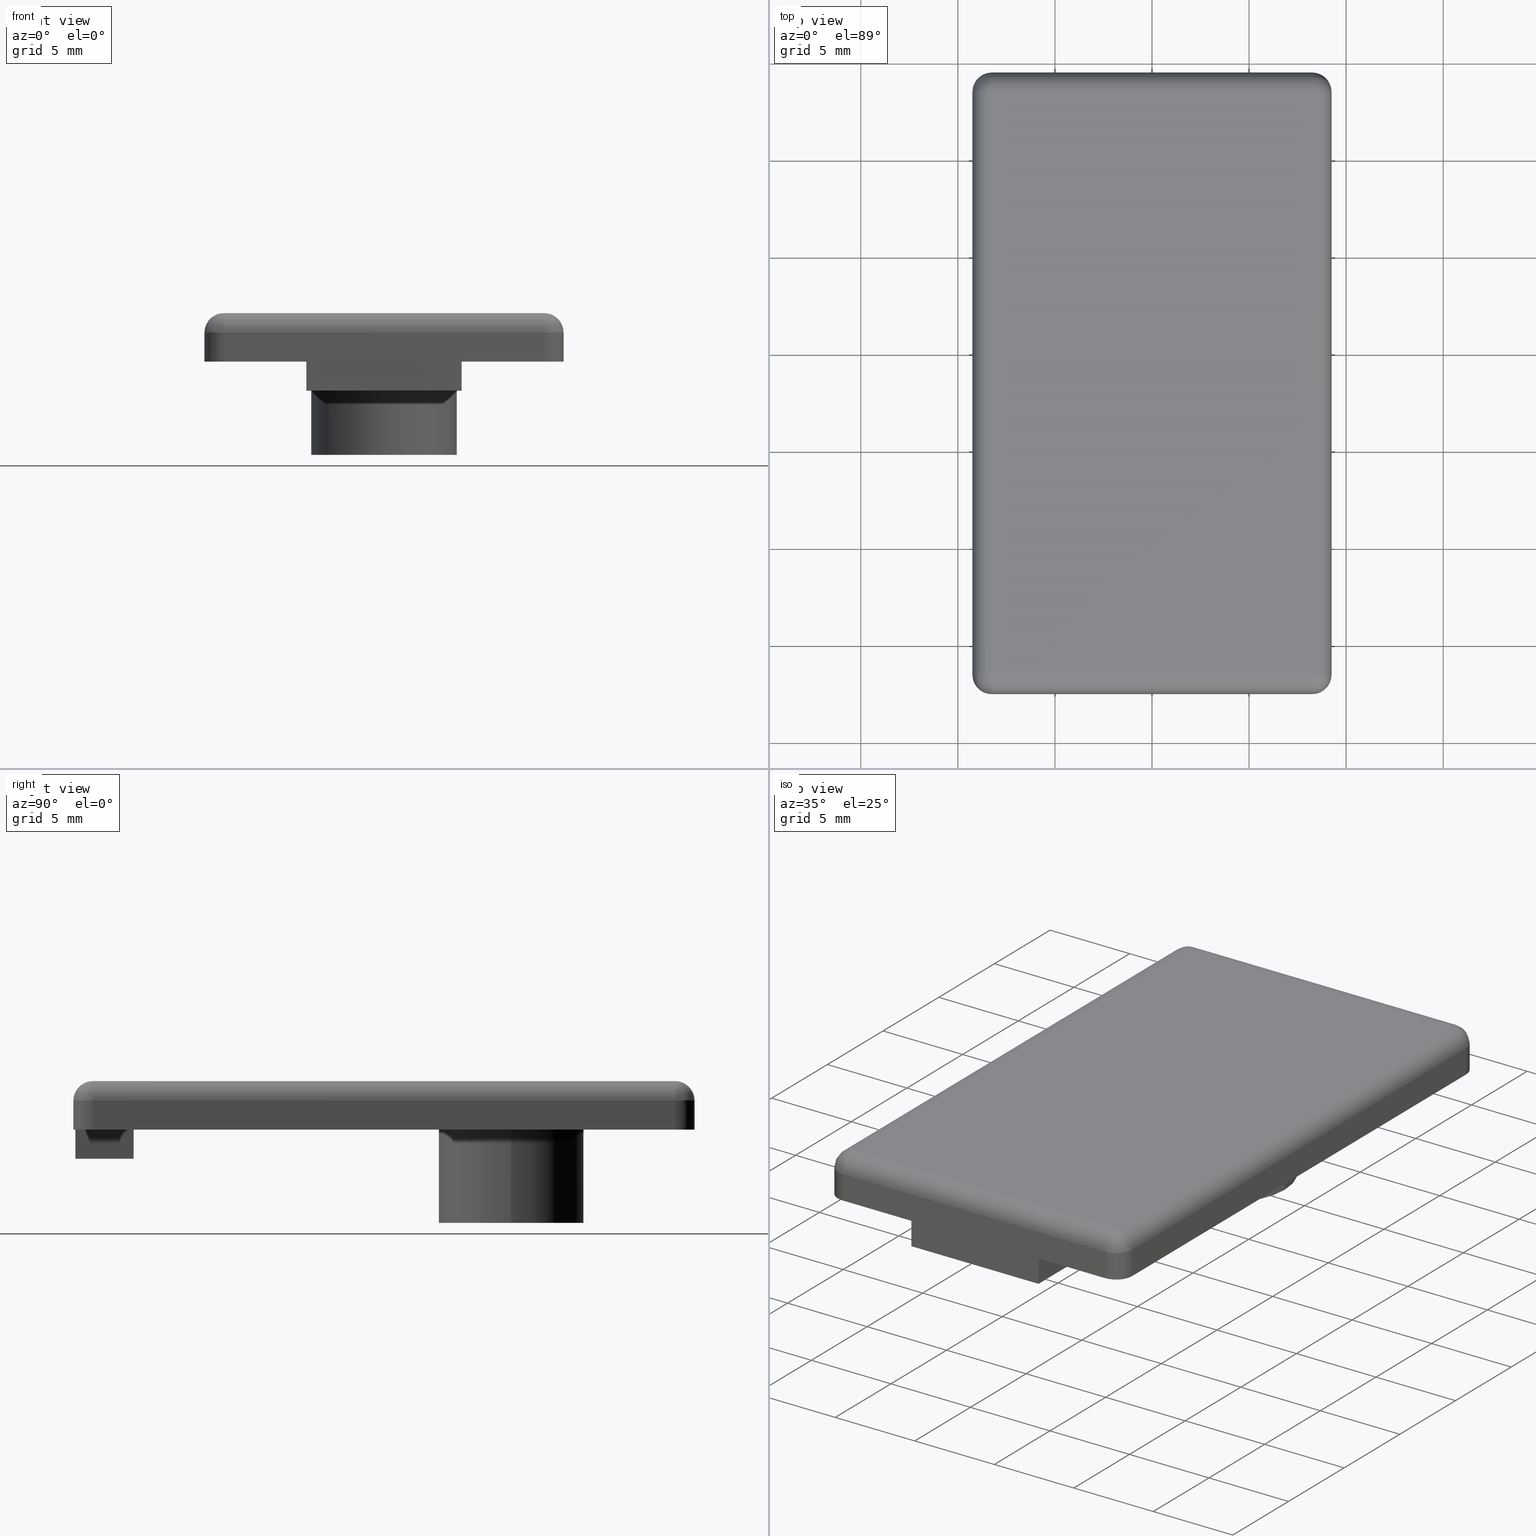
[diagram: canonical four-view strip — front | top / right | iso, engineering-drawing reading convention]
A machine part, canonical four-view strip (front | top / right | iso — engineering-drawing reading convention). The complete STEP part file that produces these views, byte-faithful:
ISO-10303-21;
HEADER;
/****************************************************************
 * Generated by software with PDE/Lib inside                    *
 * PDElib Version v4.4, created Mon 02/23/2004                  *
 * International Technegroup Inc. (www.iti-oh.com)              *
 ****************************************************************/
FILE_DESCRIPTION(('STEP AP203'),'2;1');
FILE_NAME('18.050.00.stp','2011-03-21T16:00:55',(''),(''),'2009.3.110','THINKDESIGN','');
FILE_SCHEMA(('CONFIG_CONTROL_DESIGN'));
ENDSEC;
DATA;
#2=CARTESIAN_POINT('',(-11.100004732942580,-25.750004732806246,0.0));
#3=DIRECTION('',(0.0,0.0,1.0));
#4=DIRECTION('',(1.0,0.0,0.0));
#5=AXIS2_PLACEMENT_3D('',#2,#3,#4);
#6=PLANE('',#5);
#7=CARTESIAN_POINT('',(-8.249999999966803,-22.549999999909687,0.0));
#8=VERTEX_POINT('',#7);
#9=CARTESIAN_POINT('',(8.249999999967258,-22.549999999909687,0.0));
#10=VERTEX_POINT('',#9);
#11=CARTESIAN_POINT('',(-8.249999999966803,-22.549999999909687,0.0));
#12=DIRECTION('',(1.0,0.0,0.0));
#13=VECTOR('',#12,16.499999999934062);
#14=LINE('',#11,#13);
#15=EDGE_CURVE('',#8,#10,#14,.T.);
#16=ORIENTED_EDGE('',*,*,#15,.F.);
#17=CARTESIAN_POINT('',(-9.249999999962711,-21.549999999913780,0.0));
#18=VERTEX_POINT('',#17);
#19=CARTESIAN_POINT('',(-8.249999999966803,-21.549999999913780,0.0));
#20=DIRECTION('',(0.0,0.0,1.0));
#21=DIRECTION('',(1.0,0.0,0.0));
#22=AXIS2_PLACEMENT_3D('',#19,#20,#21);
#23=CIRCLE('',#22,0.999999999995907);
#24=EDGE_CURVE('',#18,#8,#23,.T.);
#25=ORIENTED_EDGE('',*,*,#24,.F.);
#26=CARTESIAN_POINT('',(-9.249999999962711,8.449999999966167,0.0));
#27=VERTEX_POINT('',#26);
#28=CARTESIAN_POINT('',(-9.249999999962711,8.449999999966167,0.0));
#29=DIRECTION('',(0.0,-1.0,0.0));
#30=VECTOR('',#29,29.999999999879947);
#31=LINE('',#28,#30);
#32=EDGE_CURVE('',#27,#18,#31,.T.);
#33=ORIENTED_EDGE('',*,*,#32,.F.);
#34=CARTESIAN_POINT('',(-8.249999999966803,9.449999999962074,0.0));
#35=VERTEX_POINT('',#34);
#36=CARTESIAN_POINT('',(-8.249999999966803,8.449999999966167,0.0));
#37=DIRECTION('',(0.0,0.0,1.0));
#38=DIRECTION('',(1.0,0.0,0.0));
#39=AXIS2_PLACEMENT_3D('',#36,#37,#38);
#40=CIRCLE('',#39,0.999999999995907);
#41=EDGE_CURVE('',#35,#27,#40,.T.);
#42=ORIENTED_EDGE('',*,*,#41,.F.);
#43=CARTESIAN_POINT('',(8.249999999967258,9.449999999962074,0.0));
#44=VERTEX_POINT('',#43);
#45=CARTESIAN_POINT('',(8.249999999967258,9.449999999962074,0.0));
#46=DIRECTION('',(-1.0,0.0,0.0));
#47=VECTOR('',#46,16.499999999934062);
#48=LINE('',#45,#47);
#49=EDGE_CURVE('',#44,#35,#48,.T.);
#50=ORIENTED_EDGE('',*,*,#49,.F.);
#51=CARTESIAN_POINT('',(9.249999999963166,8.449999999966167,0.0));
#52=VERTEX_POINT('',#51);
#53=CARTESIAN_POINT('',(8.249999999967258,8.449999999966167,0.0));
#54=DIRECTION('',(0.0,0.0,1.0));
#55=DIRECTION('',(1.0,0.0,0.0));
#56=AXIS2_PLACEMENT_3D('',#53,#54,#55);
#57=CIRCLE('',#56,0.999999999995907);
#58=EDGE_CURVE('',#52,#44,#57,.T.);
#59=ORIENTED_EDGE('',*,*,#58,.F.);
#60=CARTESIAN_POINT('',(9.249999999963166,-21.549999999913780,0.0));
#61=VERTEX_POINT('',#60);
#62=CARTESIAN_POINT('',(9.249999999963166,-21.549999999913780,0.0));
#63=DIRECTION('',(0.0,1.0,0.0));
#64=VECTOR('',#63,29.999999999879947);
#65=LINE('',#62,#64);
#66=EDGE_CURVE('',#61,#52,#65,.T.);
#67=ORIENTED_EDGE('',*,*,#66,.F.);
#68=CARTESIAN_POINT('',(8.249999999967258,-21.549999999913780,0.0));
#69=DIRECTION('',(0.0,0.0,1.0));
#70=DIRECTION('',(1.0,0.0,0.0));
#71=AXIS2_PLACEMENT_3D('',#68,#69,#70);
#72=CIRCLE('',#71,0.999999999995907);
#73=EDGE_CURVE('',#10,#61,#72,.T.);
#74=ORIENTED_EDGE('',*,*,#73,.F.);
#75=EDGE_LOOP('',(#16,#25,#33,#42,#50,#59,#67,#74));
#76=FACE_OUTER_BOUND('',#75,.T.);
#77=CARTESIAN_POINT('',(-3.749999999984993,0.0,0.0));
#78=VERTEX_POINT('',#77);
#79=CARTESIAN_POINT('',(3.749999999984993,0.0,0.0));
#80=VERTEX_POINT('',#79);
#81=CARTESIAN_POINT('',(0.0,0.0,0.0));
#82=DIRECTION('',(0.0,0.0,-1.0));
#83=DIRECTION('',(1.0,0.0,0.0));
#84=AXIS2_PLACEMENT_3D('',#81,#82,#83);
#85=CIRCLE('',#84,3.749999999984993);
#86=EDGE_CURVE('',#78,#80,#85,.T.);
#87=ORIENTED_EDGE('',*,*,#86,.F.);
#88=CARTESIAN_POINT('',(0.0,0.0,0.0));
#89=DIRECTION('',(0.0,0.0,-1.0));
#90=DIRECTION('',(1.0,0.0,0.0));
#91=AXIS2_PLACEMENT_3D('',#88,#89,#90);
#92=CIRCLE('',#91,3.749999999984993);
#93=EDGE_CURVE('',#80,#78,#92,.T.);
#94=ORIENTED_EDGE('',*,*,#93,.F.);
#95=EDGE_LOOP('',(#87,#94));
#96=FACE_BOUND('',#95,.T.);
#97=CARTESIAN_POINT('',(-3.999999999984084,-19.449999999922056,0.0));
#98=VERTEX_POINT('',#97);
#99=CARTESIAN_POINT('',(3.999999999984084,-19.449999999922056,0.0));
#100=VERTEX_POINT('',#99);
#101=CARTESIAN_POINT('',(-3.999999999984084,-19.449999999922056,0.0));
#102=DIRECTION('',(1.0,0.0,0.0));
#103=VECTOR('',#102,7.999999999968168);
#104=LINE('',#101,#103);
#105=EDGE_CURVE('',#98,#100,#104,.T.);
#106=ORIENTED_EDGE('',*,*,#105,.F.);
#107=CARTESIAN_POINT('',(-3.999999999984084,-22.449999999910233,0.0));
#108=VERTEX_POINT('',#107);
#109=CARTESIAN_POINT('',(-3.999999999984084,-22.449999999910233,0.0));
#110=DIRECTION('',(0.0,1.0,0.0));
#111=VECTOR('',#110,2.999999999988177);
#112=LINE('',#109,#111);
#113=EDGE_CURVE('',#108,#98,#112,.T.);
#114=ORIENTED_EDGE('',*,*,#113,.F.);
#115=CARTESIAN_POINT('',(3.999999999984084,-22.449999999910233,0.0));
#116=VERTEX_POINT('',#115);
#117=CARTESIAN_POINT('',(3.999999999984084,-22.449999999910233,0.0));
#118=DIRECTION('',(-1.0,0.0,0.0));
#119=VECTOR('',#118,7.999999999968168);
#120=LINE('',#117,#119);
#121=EDGE_CURVE('',#116,#108,#120,.T.);
#122=ORIENTED_EDGE('',*,*,#121,.F.);
#123=CARTESIAN_POINT('',(3.999999999984084,-19.449999999922056,0.0));
#124=DIRECTION('',(0.0,-1.0,0.0));
#125=VECTOR('',#124,2.999999999988177);
#126=LINE('',#123,#125);
#127=EDGE_CURVE('',#100,#116,#126,.T.);
#128=ORIENTED_EDGE('',*,*,#127,.F.);
#129=EDGE_LOOP('',(#106,#114,#122,#128));
#130=FACE_BOUND('',#129,.T.);
#131=ADVANCED_FACE('',(#76,#96,#130),#6,.F.);
#132=CARTESIAN_POINT('',(-11.100004732942580,-25.750004732806246,2.499999999989996));
#133=DIRECTION('',(0.0,0.0,1.0));
#134=DIRECTION('',(1.0,0.0,0.0));
#135=AXIS2_PLACEMENT_3D('',#132,#133,#134);
#136=PLANE('',#135);
#137=CARTESIAN_POINT('',(8.249999999963166,-21.549999999913780,2.499999999989996));
#138=VERTEX_POINT('',#137);
#139=CARTESIAN_POINT('',(8.249999999967258,8.449999999966167,2.499999999989996));
#140=VERTEX_POINT('',#139);
#141=CARTESIAN_POINT('',(8.249999999963166,-21.549999999913780,2.499999999989996));
#142=DIRECTION('',(0.0,1.0,0.0));
#143=VECTOR('',#142,29.999999999879947);
#144=LINE('',#141,#143);
#145=EDGE_CURVE('',#138,#140,#144,.T.);
#146=ORIENTED_EDGE('',*,*,#145,.T.);
#147=CARTESIAN_POINT('',(-8.249999999962711,8.449999999966167,2.499999999989996));
#148=VERTEX_POINT('',#147);
#149=CARTESIAN_POINT('',(8.249999999967258,8.449999999962074,2.499999999989996));
#150=DIRECTION('',(-1.0,0.0,0.0));
#151=VECTOR('',#150,16.499999999934062);
#152=LINE('',#149,#151);
#153=EDGE_CURVE('',#140,#148,#152,.T.);
#154=ORIENTED_EDGE('',*,*,#153,.T.);
#155=CARTESIAN_POINT('',(-8.249999999966803,-21.549999999909687,2.499999999989996));
#156=VERTEX_POINT('',#155);
#157=CARTESIAN_POINT('',(-8.249999999962711,8.449999999966167,2.499999999989996));
#158=DIRECTION('',(0.0,-1.0,0.0));
#159=VECTOR('',#158,29.999999999879947);
#160=LINE('',#157,#159);
#161=EDGE_CURVE('',#148,#156,#160,.T.);
#162=ORIENTED_EDGE('',*,*,#161,.T.);
#163=CARTESIAN_POINT('',(-8.249999999966803,-21.549999999909687,2.499999999989996));
#164=DIRECTION('',(1.0,0.0,0.0));
#165=VECTOR('',#164,16.499999999934062);
#166=LINE('',#163,#165);
#167=EDGE_CURVE('',#156,#138,#166,.T.);
#168=ORIENTED_EDGE('',*,*,#167,.T.);
#169=EDGE_LOOP('',(#146,#154,#162,#168));
#170=FACE_OUTER_BOUND('',#169,.T.);
#171=ADVANCED_FACE('',(#170),#136,.T.);
#172=CARTESIAN_POINT('',(8.249999999967258,9.449999999962074,0.0));
#173=DIRECTION('',(0.0,1.0,0.0));
#174=DIRECTION('',(-1.0,0.0,0.0));
#175=AXIS2_PLACEMENT_3D('',#172,#173,#174);
#176=PLANE('',#175);
#177=ORIENTED_EDGE('',*,*,#49,.T.);
#178=CARTESIAN_POINT('',(-8.249999999966803,9.449999999962074,1.499999999989996));
#179=VERTEX_POINT('',#178);
#180=CARTESIAN_POINT('',(-8.249999999966803,9.449999999962074,0.0));
#181=DIRECTION('',(0.0,0.0,1.0));
#182=VECTOR('',#181,1.499999999989996);
#183=LINE('',#180,#182);
#184=EDGE_CURVE('',#35,#179,#183,.T.);
#185=ORIENTED_EDGE('',*,*,#184,.T.);
#186=CARTESIAN_POINT('',(8.249999999967258,9.449999999962074,1.499999999989996));
#187=VERTEX_POINT('',#186);
#188=CARTESIAN_POINT('',(8.249999999967258,9.449999999962074,1.499999999989996));
#189=DIRECTION('',(-1.0,0.0,0.0));
#190=VECTOR('',#189,16.499999999934062);
#191=LINE('',#188,#190);
#192=EDGE_CURVE('',#187,#179,#191,.T.);
#193=ORIENTED_EDGE('',*,*,#192,.F.);
#194=CARTESIAN_POINT('',(8.249999999967258,9.449999999962074,0.0));
#195=DIRECTION('',(0.0,0.0,1.0));
#196=VECTOR('',#195,1.499999999989996);
#197=LINE('',#194,#196);
#198=EDGE_CURVE('',#44,#187,#197,.T.);
#199=ORIENTED_EDGE('',*,*,#198,.F.);
#200=EDGE_LOOP('',(#177,#185,#193,#199));
#201=FACE_OUTER_BOUND('',#200,.T.);
#202=ADVANCED_FACE('',(#201),#176,.T.);
#203=CARTESIAN_POINT('',(-8.249999999966803,8.449999999966167,0.0));
#204=DIRECTION('',(0.0,0.0,1.0));
#205=DIRECTION('',(1.0,0.0,0.0));
#206=AXIS2_PLACEMENT_3D('',#203,#204,#205);
#207=CYLINDRICAL_SURFACE('',#206,0.999999999995907);
#208=ORIENTED_EDGE('',*,*,#41,.T.);
#209=CARTESIAN_POINT('',(-9.249999999962711,8.449999999966167,1.499999999989996));
#210=VERTEX_POINT('',#209);
#211=CARTESIAN_POINT('',(-9.249999999962711,8.449999999966167,0.0));
#212=DIRECTION('',(0.0,0.0,1.0));
#213=VECTOR('',#212,1.499999999989996);
#214=LINE('',#211,#213);
#215=EDGE_CURVE('',#27,#210,#214,.T.);
#216=ORIENTED_EDGE('',*,*,#215,.T.);
#217=CARTESIAN_POINT('',(-8.249999999966803,8.449999999966167,1.499999999989996));
#218=DIRECTION('',(0.0,0.0,1.0));
#219=DIRECTION('',(1.0,0.0,0.0));
#220=AXIS2_PLACEMENT_3D('',#217,#218,#219);
#221=CIRCLE('',#220,0.999999999995907);
#222=EDGE_CURVE('',#179,#210,#221,.T.);
#223=ORIENTED_EDGE('',*,*,#222,.F.);
#224=ORIENTED_EDGE('',*,*,#184,.F.);
#225=EDGE_LOOP('',(#208,#216,#223,#224));
#226=FACE_OUTER_BOUND('',#225,.T.);
#227=ADVANCED_FACE('',(#226),#207,.T.);
#228=CARTESIAN_POINT('',(-9.249999999962711,8.449999999966167,0.0));
#229=DIRECTION('',(-1.0,0.0,0.0));
#230=DIRECTION('',(0.0,-1.0,0.0));
#231=AXIS2_PLACEMENT_3D('',#228,#229,#230);
#232=PLANE('',#231);
#233=ORIENTED_EDGE('',*,*,#32,.T.);
#234=CARTESIAN_POINT('',(-9.249999999962711,-21.549999999913780,1.499999999989996));
#235=VERTEX_POINT('',#234);
#236=CARTESIAN_POINT('',(-9.249999999962711,-21.549999999913780,0.0));
#237=DIRECTION('',(0.0,0.0,1.0));
#238=VECTOR('',#237,1.499999999989996);
#239=LINE('',#236,#238);
#240=EDGE_CURVE('',#18,#235,#239,.T.);
#241=ORIENTED_EDGE('',*,*,#240,.T.);
#242=CARTESIAN_POINT('',(-9.249999999962711,8.449999999966167,1.499999999989996));
#243=DIRECTION('',(0.0,-1.0,0.0));
#244=VECTOR('',#243,29.999999999879947);
#245=LINE('',#242,#244);
#246=EDGE_CURVE('',#210,#235,#245,.T.);
#247=ORIENTED_EDGE('',*,*,#246,.F.);
#248=ORIENTED_EDGE('',*,*,#215,.F.);
#249=EDGE_LOOP('',(#233,#241,#247,#248));
#250=FACE_OUTER_BOUND('',#249,.T.);
#251=ADVANCED_FACE('',(#250),#232,.T.);
#252=CARTESIAN_POINT('',(-8.249999999966803,-21.549999999913780,0.0));
#253=DIRECTION('',(0.0,0.0,1.0));
#254=DIRECTION('',(1.0,0.0,0.0));
#255=AXIS2_PLACEMENT_3D('',#252,#253,#254);
#256=CYLINDRICAL_SURFACE('',#255,0.999999999995907);
#257=ORIENTED_EDGE('',*,*,#24,.T.);
#258=CARTESIAN_POINT('',(-8.249999999966803,-22.549999999909687,1.499999999989996));
#259=VERTEX_POINT('',#258);
#260=CARTESIAN_POINT('',(-8.249999999966803,-22.549999999909687,0.0));
#261=DIRECTION('',(0.0,0.0,1.0));
#262=VECTOR('',#261,1.499999999989996);
#263=LINE('',#260,#262);
#264=EDGE_CURVE('',#8,#259,#263,.T.);
#265=ORIENTED_EDGE('',*,*,#264,.T.);
#266=CARTESIAN_POINT('',(-8.249999999966803,-21.549999999913780,1.499999999989996));
#267=DIRECTION('',(0.0,0.0,1.0));
#268=DIRECTION('',(1.0,0.0,0.0));
#269=AXIS2_PLACEMENT_3D('',#266,#267,#268);
#270=CIRCLE('',#269,0.999999999995907);
#271=EDGE_CURVE('',#235,#259,#270,.T.);
#272=ORIENTED_EDGE('',*,*,#271,.F.);
#273=ORIENTED_EDGE('',*,*,#240,.F.);
#274=EDGE_LOOP('',(#257,#265,#272,#273));
#275=FACE_OUTER_BOUND('',#274,.T.);
#276=ADVANCED_FACE('',(#275),#256,.T.);
#277=CARTESIAN_POINT('',(-8.249999999966803,-22.549999999909687,0.0));
#278=DIRECTION('',(0.0,-1.0,0.0));
#279=DIRECTION('',(1.0,0.0,0.0));
#280=AXIS2_PLACEMENT_3D('',#277,#278,#279);
#281=PLANE('',#280);
#282=CARTESIAN_POINT('',(8.249999999967258,-22.549999999909687,1.499999999989996));
#283=VERTEX_POINT('',#282);
#284=CARTESIAN_POINT('',(8.249999999967258,-22.549999999909687,0.0));
#285=DIRECTION('',(0.0,0.0,1.0));
#286=VECTOR('',#285,1.499999999989996);
#287=LINE('',#284,#286);
#288=EDGE_CURVE('',#10,#283,#287,.T.);
#289=ORIENTED_EDGE('',*,*,#288,.T.);
#290=CARTESIAN_POINT('',(-8.249999999966803,-22.549999999909687,1.499999999989996));
#291=DIRECTION('',(1.0,0.0,0.0));
#292=VECTOR('',#291,16.499999999934062);
#293=LINE('',#290,#292);
#294=EDGE_CURVE('',#259,#283,#293,.T.);
#295=ORIENTED_EDGE('',*,*,#294,.F.);
#296=ORIENTED_EDGE('',*,*,#264,.F.);
#297=ORIENTED_EDGE('',*,*,#15,.T.);
#298=EDGE_LOOP('',(#289,#295,#296,#297));
#299=FACE_OUTER_BOUND('',#298,.T.);
#300=ADVANCED_FACE('',(#299),#281,.T.);
#301=CARTESIAN_POINT('',(8.249999999967258,-21.549999999913780,0.0));
#302=DIRECTION('',(0.0,0.0,1.0));
#303=DIRECTION('',(6.123234E-017,-1.0,0.0));
#304=AXIS2_PLACEMENT_3D('',#301,#302,#303);
#305=CYLINDRICAL_SURFACE('',#304,0.999999999995907);
#306=ORIENTED_EDGE('',*,*,#73,.T.);
#307=CARTESIAN_POINT('',(9.249999999963166,-21.549999999913780,1.499999999989996));
#308=VERTEX_POINT('',#307);
#309=CARTESIAN_POINT('',(9.249999999963166,-21.549999999913780,0.0));
#310=DIRECTION('',(0.0,0.0,1.0));
#311=VECTOR('',#310,1.499999999989996);
#312=LINE('',#309,#311);
#313=EDGE_CURVE('',#61,#308,#312,.T.);
#314=ORIENTED_EDGE('',*,*,#313,.T.);
#315=CARTESIAN_POINT('',(8.249999999967258,-21.549999999913780,1.499999999989996));
#316=DIRECTION('',(0.0,0.0,1.0));
#317=DIRECTION('',(1.0,0.0,0.0));
#318=AXIS2_PLACEMENT_3D('',#315,#316,#317);
#319=CIRCLE('',#318,0.999999999995907);
#320=EDGE_CURVE('',#283,#308,#319,.T.);
#321=ORIENTED_EDGE('',*,*,#320,.F.);
#322=ORIENTED_EDGE('',*,*,#288,.F.);
#323=EDGE_LOOP('',(#306,#314,#321,#322));
#324=FACE_OUTER_BOUND('',#323,.T.);
#325=ADVANCED_FACE('',(#324),#305,.T.);
#326=CARTESIAN_POINT('',(9.249999999963166,-21.549999999913780,0.0));
#327=DIRECTION('',(1.0,0.0,0.0));
#328=DIRECTION('',(0.0,1.0,0.0));
#329=AXIS2_PLACEMENT_3D('',#326,#327,#328);
#330=PLANE('',#329);
#331=ORIENTED_EDGE('',*,*,#66,.T.);
#332=CARTESIAN_POINT('',(9.249999999963166,8.449999999966167,1.499999999989996));
#333=VERTEX_POINT('',#332);
#334=CARTESIAN_POINT('',(9.249999999963166,8.449999999966167,0.0));
#335=DIRECTION('',(0.0,0.0,1.0));
#336=VECTOR('',#335,1.499999999989996);
#337=LINE('',#334,#336);
#338=EDGE_CURVE('',#52,#333,#337,.T.);
#339=ORIENTED_EDGE('',*,*,#338,.T.);
#340=CARTESIAN_POINT('',(9.249999999963166,-21.549999999913780,1.499999999989996));
#341=DIRECTION('',(0.0,1.0,0.0));
#342=VECTOR('',#341,29.999999999879947);
#343=LINE('',#340,#342);
#344=EDGE_CURVE('',#308,#333,#343,.T.);
#345=ORIENTED_EDGE('',*,*,#344,.F.);
#346=ORIENTED_EDGE('',*,*,#313,.F.);
#347=EDGE_LOOP('',(#331,#339,#345,#346));
#348=FACE_OUTER_BOUND('',#347,.T.);
#349=ADVANCED_FACE('',(#348),#330,.T.);
#350=CARTESIAN_POINT('',(8.249999999967258,8.449999999966167,0.0));
#351=DIRECTION('',(0.0,0.0,1.0));
#352=DIRECTION('',(1.0,0.0,0.0));
#353=AXIS2_PLACEMENT_3D('',#350,#351,#352);
#354=CYLINDRICAL_SURFACE('',#353,0.999999999995907);
#355=ORIENTED_EDGE('',*,*,#58,.T.);
#356=ORIENTED_EDGE('',*,*,#198,.T.);
#357=CARTESIAN_POINT('',(8.249999999967258,8.449999999966167,1.499999999989996));
#358=DIRECTION('',(0.0,0.0,1.0));
#359=DIRECTION('',(1.0,0.0,0.0));
#360=AXIS2_PLACEMENT_3D('',#357,#358,#359);
#361=CIRCLE('',#360,0.999999999995907);
#362=EDGE_CURVE('',#333,#187,#361,.T.);
#363=ORIENTED_EDGE('',*,*,#362,.F.);
#364=ORIENTED_EDGE('',*,*,#338,.F.);
#365=EDGE_LOOP('',(#355,#356,#363,#364));
#366=FACE_OUTER_BOUND('',#365,.T.);
#367=ADVANCED_FACE('',(#366),#354,.T.);
#368=CARTESIAN_POINT('',(9.249999999963166,8.449999999966167,1.499999999989996));
#369=CARTESIAN_POINT('',(9.249999999963505,8.449999999966167,1.630060214666949));
#370=CARTESIAN_POINT('',(9.197961223848544,8.449999999966167,1.893027817332127));
#371=CARTESIAN_POINT('',(8.975412911438671,8.449999999966167,2.225412911461507));
#372=CARTESIAN_POINT('',(8.643027817310069,8.449999999966165,2.447961223873271));
#373=CARTESIAN_POINT('',(8.380060214644610,8.449999999966167,2.499999999989657));
#374=CARTESIAN_POINT('',(8.249999999967258,8.449999999966167,2.499999999989996));
#375=CARTESIAN_POINT('',(9.249999999963160,8.482711782850979,1.499999999989996));
#376=CARTESIAN_POINT('',(9.249999999963508,8.482711782850990,1.630060214666949));
#377=CARTESIAN_POINT('',(9.197961223848541,8.481009501705119,1.893027817332128));
#378=CARTESIAN_POINT('',(8.975412911438678,8.473729549628157,2.225412911461507));
#379=CARTESIAN_POINT('',(8.643027817310086,8.462856640594827,2.447961223873271));
#380=CARTESIAN_POINT('',(8.380060214644603,8.454254501470661,2.499999999989657));
#381=CARTESIAN_POINT('',(8.249999999967258,8.449999999966167,2.499999999989996));
#382=CARTESIAN_POINT('',(9.246785252266136,8.548183197911978,1.499999999989996));
#383=CARTESIAN_POINT('',(9.246785252266468,8.548183197912012,1.630060214666949));
#384=CARTESIAN_POINT('',(9.194913767687179,8.543073864455835,1.893027817332128));
#385=CARTESIAN_POINT('',(8.973080891952108,8.521223359445903,2.225412911461508));
#386=CARTESIAN_POINT('',(8.641764332039376,8.488588727954703,2.447961223873271));
#387=CARTESIAN_POINT('',(8.379642103869003,8.462769727768759,2.499999999989656));
#388=CARTESIAN_POINT('',(8.249999999967256,8.449999999966167,2.499999999989995));
#389=CARTESIAN_POINT('',(9.227563135743326,8.677719504008703,1.499999999989996));
#390=CARTESIAN_POINT('',(9.227563135743660,8.677719504008781,1.630060214666949));
#391=CARTESIAN_POINT('',(9.176691946582565,8.665869259720854,1.893027817332128));
#392=CARTESIAN_POINT('',(8.959136920440606,8.615190668393165,2.225412911461505));
#393=CARTESIAN_POINT('',(8.634209505537696,8.539500099606759,2.447961223873273));
#394=CARTESIAN_POINT('',(8.377142071267478,8.479617247548282,2.499999999989657));
#395=CARTESIAN_POINT('',(8.249999999967260,8.449999999966165,2.499999999989996));
#396=CARTESIAN_POINT('',(9.161114266172010,8.897339584705758,1.499999999989996));
#397=CARTESIAN_POINT('',(9.161114266172316,8.897339584705909,1.630060214666949));
#398=CARTESIAN_POINT('',(9.113700994857950,8.874060580208191,1.893027817332128));
#399=CARTESIAN_POINT('',(8.910934052500691,8.774505910549859,2.225412911461508));
#400=CARTESIAN_POINT('',(8.608093251365068,8.625816900568120,2.447961223873270));
#401=CARTESIAN_POINT('',(8.368499717025934,8.508181082391314,2.499999999989657));
#402=CARTESIAN_POINT('',(8.249999999967256,8.449999999966169,2.499999999989996));
#403=CARTESIAN_POINT('',(8.975663422407974,9.175663422406885,1.499999999989996));
#404=CARTESIAN_POINT('',(8.975663422408221,9.175663422407130,1.630060214666949));
#405=CARTESIAN_POINT('',(8.937900786032854,9.137900786031764,1.893027817332129));
#406=CARTESIAN_POINT('',(8.776405615990445,8.976405615989354,2.225412911461507));
#407=CARTESIAN_POINT('',(8.535205911015813,8.735205911014722,2.447961223873272));
#408=CARTESIAN_POINT('',(8.344379940473786,8.544379940472698,2.499999999989657));
#409=CARTESIAN_POINT('',(8.249999999967258,8.449999999966167,2.499999999989996));
#410=CARTESIAN_POINT('',(8.697339584706846,9.361114266170912,1.499999999989996));
#411=CARTESIAN_POINT('',(8.697339584706999,9.361114266171224,1.630060214666948));
#412=CARTESIAN_POINT('',(8.674060580209279,9.313700994856852,1.893027817332127));
#413=CARTESIAN_POINT('',(8.574505910550951,9.110934052499601,2.225412911461507));
#414=CARTESIAN_POINT('',(8.425816900569210,8.808093251363982,2.447961223873270));
#415=CARTESIAN_POINT('',(8.308181082392405,8.568499717024841,2.499999999989656));
#416=CARTESIAN_POINT('',(8.249999999967258,8.449999999966167,2.499999999989996));
#417=CARTESIAN_POINT('',(8.477719504009794,9.427563135742238,1.499999999989996));
#418=CARTESIAN_POINT('',(8.477719504009871,9.427563135742567,1.630060214666948));
#419=CARTESIAN_POINT('',(8.465869259721945,9.376691946581477,1.893027817332128));
#420=CARTESIAN_POINT('',(8.415190668394255,9.159136920439508,2.225412911461507));
#421=CARTESIAN_POINT('',(8.339500099607852,8.834209505536592,2.447961223873273));
#422=CARTESIAN_POINT('',(8.279617247549371,8.577142071266387,2.499999999989657));
#423=CARTESIAN_POINT('',(8.249999999967258,8.449999999966167,2.499999999989996));
#424=CARTESIAN_POINT('',(8.348183197913070,9.446785252265038,1.499999999989996));
#425=CARTESIAN_POINT('',(8.348183197913103,9.446785252265379,1.630060214666949));
#426=CARTESIAN_POINT('',(8.343073864456926,9.394913767686083,1.893027817332128));
#427=CARTESIAN_POINT('',(8.321223359446996,9.173080891951027,2.225412911461506));
#428=CARTESIAN_POINT('',(8.288588727955798,8.841764332038302,2.447961223873271));
#429=CARTESIAN_POINT('',(8.262769727769852,8.579642103867910,2.499999999989657));
#430=CARTESIAN_POINT('',(8.249999999967258,8.449999999966167,2.499999999989996));
#431=CARTESIAN_POINT('',(8.282711782852070,9.449999999962074,1.499999999989996));
#432=CARTESIAN_POINT('',(8.282711782852081,9.449999999962408,1.630060214666949));
#433=CARTESIAN_POINT('',(8.281009501706210,9.397961223847451,1.893027817332128));
#434=CARTESIAN_POINT('',(8.273729549629248,9.175412911437570,2.225412911461507));
#435=CARTESIAN_POINT('',(8.262856640595919,8.843027817308965,2.447961223873271));
#436=CARTESIAN_POINT('',(8.254254501471753,8.580060214643515,2.499999999989657));
#437=CARTESIAN_POINT('',(8.249999999967258,8.449999999966165,2.499999999989996));
#438=CARTESIAN_POINT('',(8.249999999967258,9.449999999962074,1.499999999989996));
#439=CARTESIAN_POINT('',(8.249999999967258,9.449999999962413,1.630060214666949));
#440=CARTESIAN_POINT('',(8.249999999967258,9.397961223847453,1.893027817332127));
#441=CARTESIAN_POINT('',(8.249999999967260,9.175412911437581,2.225412911461507));
#442=CARTESIAN_POINT('',(8.249999999967256,8.843027817308975,2.447961223873271));
#443=CARTESIAN_POINT('',(8.249999999967258,8.580060214643519,2.499999999989657));
#444=CARTESIAN_POINT('',(8.249999999967258,8.449999999966167,2.499999999989996));
#445=B_SPLINE_SURFACE_WITH_KNOTS('',3,3,((#368,#375,#382,#389,#396,#403,#410,#417,#424,#431,#438),(#369,#376,#383,#390,#397,#404,#411,#418,#425,#432,#439),(#370,#377,#384,#391,#398,#405,#412,#419,#426,#433,#440),(#371,#378,#385,#392,#399,#406,#413,#420,#427,#434,#441),(#372,#379,#386,#393,#400,#407,#414,#421,#428,#435,#442),(#373,#380,#387,#394,#401,#408,#415,#422,#429,#436,#443),(#374,#381,#388,#395,#402,#409,#416,#423,#430,#437,#444)),.UNSPECIFIED.,.F.,.F.,.U.,(4,1,1,1,4),(4,1,1,1,1,1,1,1,4),(0.0,0.390180644030859,0.780361288062118,1.170541932093775,1.560722576125833),(0.0,0.059149506251912,0.118299012503823,0.236455528666199,0.471630649149387,0.706805769632575,0.824962285794950,0.884111792046862,0.943261298298773),.UNSPECIFIED.);
#446=ORIENTED_EDGE('',*,*,#362,.T.);
#447=CARTESIAN_POINT('',(8.249999999967258,8.449999999962074,1.499999999989996));
#448=DIRECTION('',(1.0,0.0,0.0));
#449=DIRECTION('',(0.0,1.0,0.0));
#450=AXIS2_PLACEMENT_3D('',#447,#448,#449);
#451=CIRCLE('',#450,1.0);
#452=EDGE_CURVE('',#187,#140,#451,.T.);
#453=ORIENTED_EDGE('',*,*,#452,.T.);
#454=CARTESIAN_POINT('',(8.249999999967258,8.449999999966167,1.499999999989996));
#455=DIRECTION('',(0.0,-1.0,0.0));
#456=DIRECTION('',(1.0,0.0,0.0));
#457=AXIS2_PLACEMENT_3D('',#454,#455,#456);
#458=CIRCLE('',#457,0.999999999995907);
#459=EDGE_CURVE('',#333,#140,#458,.T.);
#460=ORIENTED_EDGE('',*,*,#459,.F.);
#461=EDGE_LOOP('',(#446,#453,#460));
#462=FACE_OUTER_BOUND('',#461,.T.);
#463=ADVANCED_FACE('',(#462),#445,.F.);
#464=CARTESIAN_POINT('',(8.249999999963166,-21.549999999913780,1.499999999989996));
#465=DIRECTION('',(0.0,-1.0,0.0));
#466=DIRECTION('',(1.0,0.0,0.0));
#467=AXIS2_PLACEMENT_3D('',#464,#465,#466);
#468=CYLINDRICAL_SURFACE('',#467,1.0);
#469=ORIENTED_EDGE('',*,*,#459,.T.);
#470=ORIENTED_EDGE('',*,*,#145,.F.);
#471=CARTESIAN_POINT('',(8.249999999963166,-21.549999999913780,1.499999999989996));
#472=DIRECTION('',(0.0,-1.0,0.0));
#473=DIRECTION('',(1.0,0.0,0.0));
#474=AXIS2_PLACEMENT_3D('',#471,#472,#473);
#475=CIRCLE('',#474,1.0);
#476=EDGE_CURVE('',#308,#138,#475,.T.);
#477=ORIENTED_EDGE('',*,*,#476,.F.);
#478=ORIENTED_EDGE('',*,*,#344,.T.);
#479=EDGE_LOOP('',(#469,#470,#477,#478));
#480=FACE_OUTER_BOUND('',#479,.T.);
#481=ADVANCED_FACE('',(#480),#468,.T.);
#482=CARTESIAN_POINT('',(8.249999999967258,-22.549999999909687,1.499999999989996));
#483=CARTESIAN_POINT('',(8.249999999967258,-22.549999999910025,1.630060214666949));
#484=CARTESIAN_POINT('',(8.249999999967260,-22.497961223795070,1.893027817332128));
#485=CARTESIAN_POINT('',(8.249999999967256,-22.275412911385192,2.225412911461507));
#486=CARTESIAN_POINT('',(8.249999999967258,-21.943027817256581,2.447961223873272));
#487=CARTESIAN_POINT('',(8.249999999967258,-21.680060214591133,2.499999999989657));
#488=CARTESIAN_POINT('',(8.249999999967258,-21.549999999913780,2.499999999989996));
#489=CARTESIAN_POINT('',(8.282711782852070,-22.549999999909691,1.499999999989996));
#490=CARTESIAN_POINT('',(8.282711782852081,-22.549999999910032,1.630060214666949));
#491=CARTESIAN_POINT('',(8.281009501706212,-22.497961223795063,1.893027817332128));
#492=CARTESIAN_POINT('',(8.273729549629246,-22.275412911385185,2.225412911461507));
#493=CARTESIAN_POINT('',(8.262856640595921,-21.943027817256652,2.447961223873272));
#494=CARTESIAN_POINT('',(8.254254501471753,-21.680060214590835,2.499999999989657));
#495=CARTESIAN_POINT('',(8.249999999967258,-21.549999999913780,2.499999999989996));
#496=CARTESIAN_POINT('',(8.348183197913068,-22.546785252212651,1.499999999989995));
#497=CARTESIAN_POINT('',(8.348183197913102,-22.546785252212988,1.630060214666949));
#498=CARTESIAN_POINT('',(8.343073864456926,-22.494913767633701,1.893027817332129));
#499=CARTESIAN_POINT('',(8.321223359446993,-22.273080891898633,2.225412911461506));
#500=CARTESIAN_POINT('',(8.288588727955796,-21.941764331985883,2.447961223873272));
#501=CARTESIAN_POINT('',(8.262769727769852,-21.679642103815652,2.499999999989656));
#502=CARTESIAN_POINT('',(8.249999999967258,-21.549999999913780,2.499999999989995));
#503=CARTESIAN_POINT('',(8.477719504009798,-22.527563135689860,1.499999999989996));
#504=CARTESIAN_POINT('',(8.477719504009874,-22.527563135690190,1.630060214666949));
#505=CARTESIAN_POINT('',(8.465869259721954,-22.476691946529101,1.893027817332129));
#506=CARTESIAN_POINT('',(8.415190668394256,-22.259136920387125,2.225412911461509));
#507=CARTESIAN_POINT('',(8.339500099607848,-21.934209505484230,2.447961223873273));
#508=CARTESIAN_POINT('',(8.279617247549373,-21.677142071213932,2.499999999989657));
#509=CARTESIAN_POINT('',(8.249999999967258,-21.549999999913780,2.499999999989996));
#510=CARTESIAN_POINT('',(8.697339584706841,-22.461114266118511,1.499999999989995));
#511=CARTESIAN_POINT('',(8.697339584706995,-22.461114266118820,1.630060214666948));
#512=CARTESIAN_POINT('',(8.674060580209272,-22.413700994804465,1.893027817332127));
#513=CARTESIAN_POINT('',(8.574505910550947,-22.210934052447207,2.225412911461505));
#514=CARTESIAN_POINT('',(8.425816900569213,-21.908093251311563,2.447961223873271));
#515=CARTESIAN_POINT('',(8.308181082392402,-21.668499716972494,2.499999999989655));
#516=CARTESIAN_POINT('',(8.249999999967256,-21.549999999913776,2.499999999989995));
#517=CARTESIAN_POINT('',(8.975663422407974,-22.275663422354498,1.499999999989996));
#518=CARTESIAN_POINT('',(8.975663422408220,-22.275663422354747,1.630060214666949));
#519=CARTESIAN_POINT('',(8.937900786032859,-22.237900785979384,1.893027817332129));
#520=CARTESIAN_POINT('',(8.776405615990441,-22.076405615936963,2.225412911461507));
#521=CARTESIAN_POINT('',(8.535205911015815,-21.835205910962340,2.447961223873272));
#522=CARTESIAN_POINT('',(8.344379940473797,-21.644379940420290,2.499999999989657));
#523=CARTESIAN_POINT('',(8.249999999967258,-21.549999999913776,2.499999999989996));
#524=CARTESIAN_POINT('',(9.161114266172007,-21.997339584653364,1.499999999989995));
#525=CARTESIAN_POINT('',(9.161114266172316,-21.997339584653510,1.630060214666949));
#526=CARTESIAN_POINT('',(9.113700994857949,-21.974060580155808,1.893027817332129));
#527=CARTESIAN_POINT('',(8.910934052500686,-21.874505910497465,2.225412911461506));
#528=CARTESIAN_POINT('',(8.608093251365069,-21.725816900515724,2.447961223873274));
#529=CARTESIAN_POINT('',(8.368499717025900,-21.608181082338920,2.499999999989656));
#530=CARTESIAN_POINT('',(8.249999999967258,-21.549999999913780,2.499999999989996));
#531=CARTESIAN_POINT('',(9.227563135743333,-21.777719503956327,1.499999999989996));
#532=CARTESIAN_POINT('',(9.227563135743662,-21.777719503956401,1.630060214666949));
#533=CARTESIAN_POINT('',(9.176691946582574,-21.765869259668474,1.893027817332128));
#534=CARTESIAN_POINT('',(8.959136920440606,-21.715190668340785,2.225412911461508));
#535=CARTESIAN_POINT('',(8.634209505537703,-21.639500099554390,2.447961223873271));
#536=CARTESIAN_POINT('',(8.377142071267528,-21.579617247495907,2.499999999989658));
#537=CARTESIAN_POINT('',(8.249999999967262,-21.549999999913783,2.499999999989996));
#538=CARTESIAN_POINT('',(9.246785252266125,-21.648183197859581,1.499999999989995));
#539=CARTESIAN_POINT('',(9.246785252266466,-21.648183197859616,1.630060214666949));
#540=CARTESIAN_POINT('',(9.194913767687178,-21.643073864403448,1.893027817332129));
#541=CARTESIAN_POINT('',(8.973080891952108,-21.621223359393504,2.225412911461506));
#542=CARTESIAN_POINT('',(8.641764332039376,-21.588588727902302,2.447961223873272));
#543=CARTESIAN_POINT('',(8.379642103868919,-21.562769727716365,2.499999999989655));
#544=CARTESIAN_POINT('',(8.249999999967256,-21.549999999913780,2.499999999989995));
#545=CARTESIAN_POINT('',(9.249999999963171,-21.582711782798590,1.499999999989996));
#546=CARTESIAN_POINT('',(9.249999999963512,-21.582711782798601,1.630060214666949));
#547=CARTESIAN_POINT('',(9.197961223848546,-21.581009501652737,1.893027817332128));
#548=CARTESIAN_POINT('',(8.975412911438664,-21.573729549575766,2.225412911461507));
#549=CARTESIAN_POINT('',(8.643027817310093,-21.562856640542442,2.447961223873272));
#550=CARTESIAN_POINT('',(8.380060214644781,-21.554254501418274,2.499999999989657));
#551=CARTESIAN_POINT('',(8.249999999967258,-21.549999999913780,2.499999999989996));
#552=CARTESIAN_POINT('',(9.249999999963166,-21.549999999913780,1.499999999989996));
#553=CARTESIAN_POINT('',(9.249999999963505,-21.549999999913780,1.630060214666949));
#554=CARTESIAN_POINT('',(9.197961223848546,-21.549999999913783,1.893027817332128));
#555=CARTESIAN_POINT('',(8.975412911438671,-21.549999999913780,2.225412911461507));
#556=CARTESIAN_POINT('',(8.643027817310070,-21.549999999913783,2.447961223873272));
#557=CARTESIAN_POINT('',(8.380060214644610,-21.549999999913780,2.499999999989657));
#558=CARTESIAN_POINT('',(8.249999999967258,-21.549999999913780,2.499999999989996));
#559=B_SPLINE_SURFACE_WITH_KNOTS('',3,3,((#482,#489,#496,#503,#510,#517,#524,#531,#538,#545,#552),(#483,#490,#497,#504,#511,#518,#525,#532,#539,#546,#553),(#484,#491,#498,#505,#512,#519,#526,#533,#540,#547,#554),(#485,#492,#499,#506,#513,#520,#527,#534,#541,#548,#555),(#486,#493,#500,#507,#514,#521,#528,#535,#542,#549,#556),(#487,#494,#501,#508,#515,#522,#529,#536,#543,#550,#557),(#488,#495,#502,#509,#516,#523,#530,#537,#544,#551,#558)),.UNSPECIFIED.,.F.,.F.,.U.,(4,1,1,1,4),(4,1,1,1,1,1,1,1,4),(0.0,0.390180644030859,0.780361288062118,1.170541932093776,1.560722576125833),(0.0,0.059149506251912,0.118299012503822,0.236455528666199,0.471630649149387,0.706805769632574,0.824962285794951,0.884111792046863,0.943261298298774),.UNSPECIFIED.);
#560=ORIENTED_EDGE('',*,*,#476,.T.);
#561=CARTESIAN_POINT('',(8.249999999967258,-21.549999999913780,1.499999999989996));
#562=DIRECTION('',(-1.0,0.0,0.0));
#563=DIRECTION('',(0.0,-1.0,0.0));
#564=AXIS2_PLACEMENT_3D('',#561,#562,#563);
#565=CIRCLE('',#564,0.999999999995907);
#566=EDGE_CURVE('',#283,#138,#565,.T.);
#567=ORIENTED_EDGE('',*,*,#566,.F.);
#568=ORIENTED_EDGE('',*,*,#320,.T.);
#569=EDGE_LOOP('',(#560,#567,#568));
#570=FACE_OUTER_BOUND('',#569,.T.);
#571=ADVANCED_FACE('',(#570),#559,.F.);
#572=CARTESIAN_POINT('',(-8.249999999966803,-21.549999999909687,1.499999999989996));
#573=DIRECTION('',(-1.0,0.0,0.0));
#574=DIRECTION('',(0.0,-1.0,0.0));
#575=AXIS2_PLACEMENT_3D('',#572,#573,#574);
#576=CYLINDRICAL_SURFACE('',#575,1.0);
#577=ORIENTED_EDGE('',*,*,#566,.T.);
#578=ORIENTED_EDGE('',*,*,#167,.F.);
#579=CARTESIAN_POINT('',(-8.249999999966803,-21.549999999909687,1.499999999989996));
#580=DIRECTION('',(-1.0,0.0,0.0));
#581=DIRECTION('',(0.0,-1.0,0.0));
#582=AXIS2_PLACEMENT_3D('',#579,#580,#581);
#583=CIRCLE('',#582,1.0);
#584=EDGE_CURVE('',#259,#156,#583,.T.);
#585=ORIENTED_EDGE('',*,*,#584,.F.);
#586=ORIENTED_EDGE('',*,*,#294,.T.);
#587=EDGE_LOOP('',(#577,#578,#585,#586));
#588=FACE_OUTER_BOUND('',#587,.T.);
#589=ADVANCED_FACE('',(#588),#576,.T.);
#590=CARTESIAN_POINT('',(-9.249999999962711,-21.549999999913780,1.499999999989996));
#591=CARTESIAN_POINT('',(-9.249999999963050,-21.549999999913780,1.630060214666949));
#592=CARTESIAN_POINT('',(-9.197961223848090,-21.549999999913780,1.893027817332127));
#593=CARTESIAN_POINT('',(-8.975412911438218,-21.549999999913783,2.225412911461508));
#594=CARTESIAN_POINT('',(-8.643027817309616,-21.549999999913783,2.447961223873271));
#595=CARTESIAN_POINT('',(-8.380060214644155,-21.549999999913780,2.499999999989657));
#596=CARTESIAN_POINT('',(-8.249999999966803,-21.549999999913780,2.499999999989996));
#597=CARTESIAN_POINT('',(-9.249999999962716,-21.582711782798590,1.499999999989996));
#598=CARTESIAN_POINT('',(-9.249999999963057,-21.582711782798601,1.630060214666949));
#599=CARTESIAN_POINT('',(-9.197961223848060,-21.581009501652730,1.893027817332128));
#600=CARTESIAN_POINT('',(-8.975412911438216,-21.573729549575773,2.225412911461508));
#601=CARTESIAN_POINT('',(-8.643027817309703,-21.562856640542446,2.447961223873271));
#602=CARTESIAN_POINT('',(-8.380060214644326,-21.554254501418274,2.499999999989657));
#603=CARTESIAN_POINT('',(-8.249999999966803,-21.549999999913780,2.499999999989996));
#604=CARTESIAN_POINT('',(-9.246785252265680,-21.648183197859591,1.499999999989996));
#605=CARTESIAN_POINT('',(-9.246785252266015,-21.648183197859623,1.630060214666949));
#606=CARTESIAN_POINT('',(-9.194913767686746,-21.643073864403455,1.893027817332128));
#607=CARTESIAN_POINT('',(-8.973080891951661,-21.621223359393532,2.225412911461509));
#608=CARTESIAN_POINT('',(-8.641764332038898,-21.588588727902319,2.447961223873272));
#609=CARTESIAN_POINT('',(-8.379642103868470,-21.562769727716383,2.499999999989657));
#610=CARTESIAN_POINT('',(-8.249999999966805,-21.549999999913787,2.499999999989996));
#611=CARTESIAN_POINT('',(-9.227563135742873,-21.777719503956320,1.499999999989996));
#612=CARTESIAN_POINT('',(-9.227563135743203,-21.777719503956398,1.630060214666948));
#613=CARTESIAN_POINT('',(-9.176691946582094,-21.765869259668460,1.893027817332128));
#614=CARTESIAN_POINT('',(-8.959136920440148,-21.715190668340785,2.225412911461507));
#615=CARTESIAN_POINT('',(-8.634209505537260,-21.639500099554379,2.447961223873270));
#616=CARTESIAN_POINT('',(-8.377142071267070,-21.579617247495889,2.499999999989657));
#617=CARTESIAN_POINT('',(-8.249999999966805,-21.549999999913780,2.499999999989996));
#618=CARTESIAN_POINT('',(-9.161114266171552,-21.997339584653368,1.499999999989995));
#619=CARTESIAN_POINT('',(-9.161114266171863,-21.997339584653513,1.630060214666949));
#620=CARTESIAN_POINT('',(-9.113700994857503,-21.974060580155797,1.893027817332127));
#621=CARTESIAN_POINT('',(-8.910934052500238,-21.874505910497472,2.225412911461509));
#622=CARTESIAN_POINT('',(-8.608093251364602,-21.725816900515738,2.447961223873271));
#623=CARTESIAN_POINT('',(-8.368499717025447,-21.608181082338927,2.499999999989657));
#624=CARTESIAN_POINT('',(-8.249999999966800,-21.549999999913776,2.499999999989994));
#625=CARTESIAN_POINT('',(-8.975663422407518,-22.275663422354505,1.499999999989996));
#626=CARTESIAN_POINT('',(-8.975663422407765,-22.275663422354739,1.630060214666948));
#627=CARTESIAN_POINT('',(-8.937900786032399,-22.237900785979384,1.893027817332128));
#628=CARTESIAN_POINT('',(-8.776405615989988,-22.076405615936963,2.225412911461508));
#629=CARTESIAN_POINT('',(-8.535205911015368,-21.835205910962333,2.447961223873271));
#630=CARTESIAN_POINT('',(-8.344379940473342,-21.644379940420286,2.499999999989657));
#631=CARTESIAN_POINT('',(-8.249999999966807,-21.549999999913787,2.499999999989996));
#632=CARTESIAN_POINT('',(-8.697339584706395,-22.461114266118525,1.499999999989995));
#633=CARTESIAN_POINT('',(-8.697339584706546,-22.461114266118834,1.630060214666949));
#634=CARTESIAN_POINT('',(-8.674060580208831,-22.413700994804472,1.893027817332128));
#635=CARTESIAN_POINT('',(-8.574505910550492,-22.210934052447243,2.225412911461508));
#636=CARTESIAN_POINT('',(-8.425816900568755,-21.908093251311584,2.447961223873272));
#637=CARTESIAN_POINT('',(-8.308181082391950,-21.668499716972505,2.499999999989656));
#638=CARTESIAN_POINT('',(-8.249999999966802,-21.549999999913769,2.499999999989995));
#639=CARTESIAN_POINT('',(-8.477719504009340,-22.527563135689853,1.499999999989996));
#640=CARTESIAN_POINT('',(-8.477719504009414,-22.527563135690187,1.630060214666948));
#641=CARTESIAN_POINT('',(-8.465869259721487,-22.476691946529076,1.893027817332128));
#642=CARTESIAN_POINT('',(-8.415190668393805,-22.259136920387121,2.225412911461509));
#643=CARTESIAN_POINT('',(-8.339500099607397,-21.934209505484215,2.447961223873271));
#644=CARTESIAN_POINT('',(-8.279617247548917,-21.677142071213929,2.499999999989657));
#645=CARTESIAN_POINT('',(-8.249999999966803,-21.549999999913780,2.499999999989996));
#646=CARTESIAN_POINT('',(-8.348183197912613,-22.546785252212658,1.499999999989996));
#647=CARTESIAN_POINT('',(-8.348183197912649,-22.546785252212995,1.630060214666949));
#648=CARTESIAN_POINT('',(-8.343073864456471,-22.494913767633715,1.893027817332128));
#649=CARTESIAN_POINT('',(-8.321223359446540,-22.273080891898640,2.225412911461508));
#650=CARTESIAN_POINT('',(-8.288588727955338,-21.941764331985908,2.447961223873272));
#651=CARTESIAN_POINT('',(-8.262769727769399,-21.679642103815649,2.499999999989657));
#652=CARTESIAN_POINT('',(-8.249999999966803,-21.549999999913780,2.499999999989996));
#653=CARTESIAN_POINT('',(-8.282711782851616,-22.549999999909691,1.499999999989996));
#654=CARTESIAN_POINT('',(-8.282711782851626,-22.549999999910025,1.630060214666949));
#655=CARTESIAN_POINT('',(-8.281009501705754,-22.497961223795048,1.893027817332128));
#656=CARTESIAN_POINT('',(-8.273729549628795,-22.275412911385196,2.225412911461508));
#657=CARTESIAN_POINT('',(-8.262856640595464,-21.943027817256624,2.447961223873271));
#658=CARTESIAN_POINT('',(-8.254254501471298,-21.680060214590853,2.499999999989657));
#659=CARTESIAN_POINT('',(-8.249999999966803,-21.549999999913776,2.499999999989996));
#660=CARTESIAN_POINT('',(-8.249999999966803,-22.549999999909687,1.499999999989996));
#661=CARTESIAN_POINT('',(-8.249999999966803,-22.549999999910025,1.630060214666949));
#662=CARTESIAN_POINT('',(-8.249999999966803,-22.497961223795059,1.893027817332127));
#663=CARTESIAN_POINT('',(-8.249999999966807,-22.275412911385203,2.225412911461508));
#664=CARTESIAN_POINT('',(-8.249999999966803,-21.943027817256592,2.447961223873271));
#665=CARTESIAN_POINT('',(-8.249999999966803,-21.680060214591133,2.499999999989657));
#666=CARTESIAN_POINT('',(-8.249999999966803,-21.549999999913780,2.499999999989996));
#667=B_SPLINE_SURFACE_WITH_KNOTS('',3,3,((#590,#597,#604,#611,#618,#625,#632,#639,#646,#653,#660),(#591,#598,#605,#612,#619,#626,#633,#640,#647,#654,#661),(#592,#599,#606,#613,#620,#627,#634,#641,#648,#655,#662),(#593,#600,#607,#614,#621,#628,#635,#642,#649,#656,#663),(#594,#601,#608,#615,#622,#629,#636,#643,#650,#657,#664),(#595,#602,#609,#616,#623,#630,#637,#644,#651,#658,#665),(#596,#603,#610,#617,#624,#631,#638,#645,#652,#659,#666)),.UNSPECIFIED.,.F.,.F.,.U.,(4,1,1,1,4),(4,1,1,1,1,1,1,1,4),(0.0,0.390180644030859,0.780361288062118,1.170541932093776,1.560722576125833),(0.0,0.059149506251911,0.118299012503822,0.236455528666200,0.471630649149387,0.706805769632574,0.824962285794952,0.884111792046863,0.943261298298774),.UNSPECIFIED.);
#668=ORIENTED_EDGE('',*,*,#584,.T.);
#669=CARTESIAN_POINT('',(-8.249999999966803,-21.549999999913780,1.499999999989996));
#670=DIRECTION('',(0.0,1.0,0.0));
#671=DIRECTION('',(-1.0,0.0,0.0));
#672=AXIS2_PLACEMENT_3D('',#669,#670,#671);
#673=CIRCLE('',#672,0.999999999995907);
#674=EDGE_CURVE('',#235,#156,#673,.T.);
#675=ORIENTED_EDGE('',*,*,#674,.F.);
#676=ORIENTED_EDGE('',*,*,#271,.T.);
#677=EDGE_LOOP('',(#668,#675,#676));
#678=FACE_OUTER_BOUND('',#677,.T.);
#679=ADVANCED_FACE('',(#678),#667,.F.);
#680=CARTESIAN_POINT('',(-8.249999999962711,8.449999999966167,1.499999999989996));
#681=DIRECTION('',(0.0,1.0,0.0));
#682=DIRECTION('',(-1.0,0.0,0.0));
#683=AXIS2_PLACEMENT_3D('',#680,#681,#682);
#684=CYLINDRICAL_SURFACE('',#683,1.0);
#685=ORIENTED_EDGE('',*,*,#674,.T.);
#686=ORIENTED_EDGE('',*,*,#161,.F.);
#687=CARTESIAN_POINT('',(-8.249999999962711,8.449999999966167,1.499999999989996));
#688=DIRECTION('',(0.0,1.0,0.0));
#689=DIRECTION('',(-1.0,0.0,0.0));
#690=AXIS2_PLACEMENT_3D('',#687,#688,#689);
#691=CIRCLE('',#690,1.0);
#692=EDGE_CURVE('',#210,#148,#691,.T.);
#693=ORIENTED_EDGE('',*,*,#692,.F.);
#694=ORIENTED_EDGE('',*,*,#246,.T.);
#695=EDGE_LOOP('',(#685,#686,#693,#694));
#696=FACE_OUTER_BOUND('',#695,.T.);
#697=ADVANCED_FACE('',(#696),#684,.T.);
#698=CARTESIAN_POINT('',(-8.249999999966803,9.449999999962074,1.499999999989996));
#699=CARTESIAN_POINT('',(-8.249999999966803,9.449999999962413,1.630060214666949));
#700=CARTESIAN_POINT('',(-8.249999999966803,9.397961223847453,1.893027817332127));
#701=CARTESIAN_POINT('',(-8.249999999966803,9.175412911437581,2.225412911461507));
#702=CARTESIAN_POINT('',(-8.249999999966802,8.843027817308975,2.447961223873271));
#703=CARTESIAN_POINT('',(-8.249999999966803,8.580060214643519,2.499999999989657));
#704=CARTESIAN_POINT('',(-8.249999999966803,8.449999999966167,2.499999999989996));
#705=CARTESIAN_POINT('',(-8.282711782851616,9.449999999962076,1.499999999989996));
#706=CARTESIAN_POINT('',(-8.282711782851626,9.449999999962419,1.630060214666949));
#707=CARTESIAN_POINT('',(-8.281009501705754,9.397961223847451,1.893027817332128));
#708=CARTESIAN_POINT('',(-8.273729549628794,9.175412911437579,2.225412911461507));
#709=CARTESIAN_POINT('',(-8.262856640595464,8.843027817308975,2.447961223873271));
#710=CARTESIAN_POINT('',(-8.254254501471298,8.580060214643529,2.499999999989657));
#711=CARTESIAN_POINT('',(-8.249999999966803,8.449999999966167,2.499999999989996));
#712=CARTESIAN_POINT('',(-8.348183197912611,9.446785252265041,1.499999999989995));
#713=CARTESIAN_POINT('',(-8.348183197912649,9.446785252265375,1.630060214666949));
#714=CARTESIAN_POINT('',(-8.343073864456470,9.394913767686084,1.893027817332128));
#715=CARTESIAN_POINT('',(-8.321223359446542,9.173080891951022,2.225412911461507));
#716=CARTESIAN_POINT('',(-8.288588727955334,8.841764332038295,2.447961223873270));
#717=CARTESIAN_POINT('',(-8.262769727769395,8.579642103867903,2.499999999989656));
#718=CARTESIAN_POINT('',(-8.249999999966802,8.449999999966165,2.499999999989995));
#719=CARTESIAN_POINT('',(-8.477719504009343,9.427563135742236,1.499999999989996));
#720=CARTESIAN_POINT('',(-8.477719504009416,9.427563135742570,1.630060214666949));
#721=CARTESIAN_POINT('',(-8.465869259721492,9.376691946581479,1.893027817332128));
#722=CARTESIAN_POINT('',(-8.415190668393800,9.159136920439511,2.225412911461506));
#723=CARTESIAN_POINT('',(-8.339500099607404,8.834209505536599,2.447961223873274));
#724=CARTESIAN_POINT('',(-8.279617247548920,8.577142071266394,2.499999999989658));
#725=CARTESIAN_POINT('',(-8.249999999966805,8.449999999966167,2.499999999989997));
#726=CARTESIAN_POINT('',(-8.697339584706391,9.361114266170919,1.499999999989996));
#727=CARTESIAN_POINT('',(-8.697339584706546,9.361114266171224,1.630060214666949));
#728=CARTESIAN_POINT('',(-8.674060580208822,9.313700994856855,1.893027817332128));
#729=CARTESIAN_POINT('',(-8.574505910550496,9.110934052499601,2.225412911461509));
#730=CARTESIAN_POINT('',(-8.425816900568755,8.808093251363982,2.447961223873270));
#731=CARTESIAN_POINT('',(-8.308181082391950,8.568499717024841,2.499999999989657));
#732=CARTESIAN_POINT('',(-8.249999999966803,8.449999999966167,2.499999999989995));
#733=CARTESIAN_POINT('',(-8.975663422407521,9.175663422406881,1.499999999989995));
#734=CARTESIAN_POINT('',(-8.975663422407767,9.175663422407128,1.630060214666949));
#735=CARTESIAN_POINT('',(-8.937900786032408,9.137900786031763,1.893027817332128));
#736=CARTESIAN_POINT('',(-8.776405615989987,8.976405615989352,2.225412911461507));
#737=CARTESIAN_POINT('',(-8.535205911015357,8.735205911014722,2.447961223873272));
#738=CARTESIAN_POINT('',(-8.344379940473329,8.544379940472696,2.499999999989657));
#739=CARTESIAN_POINT('',(-8.249999999966803,8.449999999966167,2.499999999989996));
#740=CARTESIAN_POINT('',(-9.161114266171548,8.897339584705756,1.499999999989996));
#741=CARTESIAN_POINT('',(-9.161114266171859,8.897339584705911,1.630060214666948));
#742=CARTESIAN_POINT('',(-9.113700994857485,8.874060580208187,1.893027817332127));
#743=CARTESIAN_POINT('',(-8.910934052500238,8.774505910549859,2.225412911461507));
#744=CARTESIAN_POINT('',(-8.608093251364615,8.625816900568118,2.447961223873270));
#745=CARTESIAN_POINT('',(-8.368499717025479,8.508181082391314,2.499999999989656));
#746=CARTESIAN_POINT('',(-8.249999999966803,8.449999999966167,2.499999999989996));
#747=CARTESIAN_POINT('',(-9.227563135742877,8.677719504008703,1.499999999989996));
#748=CARTESIAN_POINT('',(-9.227563135743207,8.677719504008778,1.630060214666948));
#749=CARTESIAN_POINT('',(-9.176691946582116,8.665869259720854,1.893027817332128));
#750=CARTESIAN_POINT('',(-8.959136920440145,8.615190668393161,2.225412911461507));
#751=CARTESIAN_POINT('',(-8.634209505537234,8.539500099606757,2.447961223873273));
#752=CARTESIAN_POINT('',(-8.377142071267024,8.479617247548280,2.499999999989657));
#753=CARTESIAN_POINT('',(-8.249999999966803,8.449999999966167,2.499999999989996));
#754=CARTESIAN_POINT('',(-9.246785252265674,8.548183197911978,1.499999999989996));
#755=CARTESIAN_POINT('',(-9.246785252266010,8.548183197912014,1.630060214666949));
#756=CARTESIAN_POINT('',(-9.194913767686717,8.543073864455835,1.893027817332128));
#757=CARTESIAN_POINT('',(-8.973080891951664,8.521223359445903,2.225412911461506));
#758=CARTESIAN_POINT('',(-8.641764332038932,8.488588727954703,2.447961223873271));
#759=CARTESIAN_POINT('',(-8.379642103868548,8.462769727768762,2.499999999989657));
#760=CARTESIAN_POINT('',(-8.249999999966803,8.449999999966167,2.499999999989996));
#761=CARTESIAN_POINT('',(-9.249999999962713,8.482711782850979,1.499999999989996));
#762=CARTESIAN_POINT('',(-9.249999999963054,8.482711782850990,1.630060214666949));
#763=CARTESIAN_POINT('',(-9.197961223848088,8.481009501705119,1.893027817332128));
#764=CARTESIAN_POINT('',(-8.975412911438209,8.473729549628157,2.225412911461507));
#765=CARTESIAN_POINT('',(-8.643027817309614,8.462856640594827,2.447961223873271));
#766=CARTESIAN_POINT('',(-8.380060214644148,8.454254501470661,2.499999999989657));
#767=CARTESIAN_POINT('',(-8.249999999966803,8.449999999966165,2.499999999989996));
#768=CARTESIAN_POINT('',(-9.249999999962711,8.449999999966167,1.499999999989996));
#769=CARTESIAN_POINT('',(-9.249999999963050,8.449999999966167,1.630060214666949));
#770=CARTESIAN_POINT('',(-9.197961223848090,8.449999999966167,1.893027817332127));
#771=CARTESIAN_POINT('',(-8.975412911438216,8.449999999966167,2.225412911461507));
#772=CARTESIAN_POINT('',(-8.643027817309614,8.449999999966165,2.447961223873271));
#773=CARTESIAN_POINT('',(-8.380060214644155,8.449999999966167,2.499999999989657));
#774=CARTESIAN_POINT('',(-8.249999999966803,8.449999999966167,2.499999999989996));
#775=B_SPLINE_SURFACE_WITH_KNOTS('',3,3,((#698,#705,#712,#719,#726,#733,#740,#747,#754,#761,#768),(#699,#706,#713,#720,#727,#734,#741,#748,#755,#762,#769),(#700,#707,#714,#721,#728,#735,#742,#749,#756,#763,#770),(#701,#708,#715,#722,#729,#736,#743,#750,#757,#764,#771),(#702,#709,#716,#723,#730,#737,#744,#751,#758,#765,#772),(#703,#710,#717,#724,#731,#738,#745,#752,#759,#766,#773),(#704,#711,#718,#725,#732,#739,#746,#753,#760,#767,#774)),.UNSPECIFIED.,.F.,.F.,.U.,(4,1,1,1,4),(4,1,1,1,1,1,1,1,4),(0.0,0.390180644030859,0.780361288062118,1.170541932093775,1.560722576125833),(0.0,0.059149506251910,0.118299012503823,0.236455528666199,0.471630649149387,0.706805769632575,0.824962285794950,0.884111792046862,0.943261298298773),.UNSPECIFIED.);
#776=ORIENTED_EDGE('',*,*,#692,.T.);
#777=CARTESIAN_POINT('',(-8.249999999966803,8.449999999966167,1.499999999989996));
#778=DIRECTION('',(1.0,0.0,0.0));
#779=DIRECTION('',(0.0,1.0,0.0));
#780=AXIS2_PLACEMENT_3D('',#777,#778,#779);
#781=CIRCLE('',#780,0.999999999995907);
#782=EDGE_CURVE('',#179,#148,#781,.T.);
#783=ORIENTED_EDGE('',*,*,#782,.F.);
#784=ORIENTED_EDGE('',*,*,#222,.T.);
#785=EDGE_LOOP('',(#776,#783,#784));
#786=FACE_OUTER_BOUND('',#785,.T.);
#787=ADVANCED_FACE('',(#786),#775,.F.);
#788=CARTESIAN_POINT('',(8.249999999967258,8.449999999962074,1.499999999989996));
#789=DIRECTION('',(1.0,0.0,0.0));
#790=DIRECTION('',(0.0,1.0,0.0));
#791=AXIS2_PLACEMENT_3D('',#788,#789,#790);
#792=CYLINDRICAL_SURFACE('',#791,1.0);
#793=ORIENTED_EDGE('',*,*,#192,.T.);
#794=ORIENTED_EDGE('',*,*,#782,.T.);
#795=ORIENTED_EDGE('',*,*,#153,.F.);
#796=ORIENTED_EDGE('',*,*,#452,.F.);
#797=EDGE_LOOP('',(#793,#794,#795,#796));
#798=FACE_OUTER_BOUND('',#797,.T.);
#799=ADVANCED_FACE('',(#798),#792,.T.);
#800=CARTESIAN_POINT('',(0.0,0.0,0.0));
#801=DIRECTION('',(0.0,0.0,-1.0));
#802=DIRECTION('',(1.0,0.0,0.0));
#803=AXIS2_PLACEMENT_3D('',#800,#801,#802);
#804=CYLINDRICAL_SURFACE('',#803,3.749999999984993);
#805=CARTESIAN_POINT('',(-3.749999999984993,0.0,-4.799999999981083));
#806=VERTEX_POINT('',#805);
#807=CARTESIAN_POINT('',(3.749999999984993,0.0,-4.799999999981083));
#808=VERTEX_POINT('',#807);
#809=CARTESIAN_POINT('',(0.0,0.0,-4.799999999981083));
#810=DIRECTION('',(0.0,0.0,-1.0));
#811=DIRECTION('',(1.0,0.0,0.0));
#812=AXIS2_PLACEMENT_3D('',#809,#810,#811);
#813=CIRCLE('',#812,3.749999999984993);
#814=EDGE_CURVE('',#806,#808,#813,.T.);
#815=ORIENTED_EDGE('',*,*,#814,.F.);
#816=CARTESIAN_POINT('',(0.0,0.0,-4.799999999981083));
#817=DIRECTION('',(0.0,0.0,-1.0));
#818=DIRECTION('',(1.0,0.0,0.0));
#819=AXIS2_PLACEMENT_3D('',#816,#817,#818);
#820=CIRCLE('',#819,3.749999999984993);
#821=EDGE_CURVE('',#808,#806,#820,.T.);
#822=ORIENTED_EDGE('',*,*,#821,.F.);
#823=CARTESIAN_POINT('',(3.749999999984993,0.0,0.0));
#824=DIRECTION('',(0.0,0.0,-1.0));
#825=VECTOR('',#824,4.799999999981083);
#826=LINE('',#823,#825);
#827=EDGE_CURVE('',#80,#808,#826,.T.);
#828=ORIENTED_EDGE('',*,*,#827,.F.);
#829=ORIENTED_EDGE('',*,*,#93,.T.);
#830=ORIENTED_EDGE('',*,*,#86,.T.);
#831=ORIENTED_EDGE('',*,*,#827,.T.);
#832=EDGE_LOOP('',(#815,#822,#828,#829,#830,#831));
#833=FACE_OUTER_BOUND('',#832,.T.);
#834=ADVANCED_FACE('',(#833),#804,.T.);
#835=CARTESIAN_POINT('',(-4.500004724421615,4.500004724420251,-4.799999999981083));
#836=DIRECTION('',(0.0,0.0,-1.0));
#837=DIRECTION('',(1.0,0.0,0.0));
#838=AXIS2_PLACEMENT_3D('',#835,#836,#837);
#839=PLANE('',#838);
#840=ORIENTED_EDGE('',*,*,#821,.T.);
#841=ORIENTED_EDGE('',*,*,#814,.T.);
#842=EDGE_LOOP('',(#840,#841));
#843=FACE_OUTER_BOUND('',#842,.T.);
#844=ADVANCED_FACE('',(#843),#839,.T.);
#845=CARTESIAN_POINT('',(-3.999999999984084,-19.449999999922056,0.0));
#846=DIRECTION('',(0.0,1.0,0.0));
#847=DIRECTION('',(1.0,0.0,0.0));
#848=AXIS2_PLACEMENT_3D('',#845,#846,#847);
#849=PLANE('',#848);
#850=CARTESIAN_POINT('',(-3.999999999984084,-19.449999999922056,-1.499999999994088));
#851=VERTEX_POINT('',#850);
#852=CARTESIAN_POINT('',(-3.999999999984084,-19.449999999922056,0.0));
#853=DIRECTION('',(0.0,0.0,-1.0));
#854=VECTOR('',#853,1.499999999994088);
#855=LINE('',#852,#854);
#856=EDGE_CURVE('',#98,#851,#855,.T.);
#857=ORIENTED_EDGE('',*,*,#856,.F.);
#858=ORIENTED_EDGE('',*,*,#105,.T.);
#859=CARTESIAN_POINT('',(3.999999999984084,-19.449999999922056,-1.499999999994088));
#860=VERTEX_POINT('',#859);
#861=CARTESIAN_POINT('',(3.999999999984084,-19.449999999922056,0.0));
#862=DIRECTION('',(0.0,0.0,-1.0));
#863=VECTOR('',#862,1.499999999994088);
#864=LINE('',#861,#863);
#865=EDGE_CURVE('',#100,#860,#864,.T.);
#866=ORIENTED_EDGE('',*,*,#865,.T.);
#867=CARTESIAN_POINT('',(-3.999999999984084,-19.449999999922056,-1.499999999994088));
#868=DIRECTION('',(1.0,0.0,0.0));
#869=VECTOR('',#868,7.999999999968168);
#870=LINE('',#867,#869);
#871=EDGE_CURVE('',#851,#860,#870,.T.);
#872=ORIENTED_EDGE('',*,*,#871,.F.);
#873=EDGE_LOOP('',(#857,#858,#866,#872));
#874=FACE_OUTER_BOUND('',#873,.T.);
#875=ADVANCED_FACE('',(#874),#849,.T.);
#876=CARTESIAN_POINT('',(3.999999999984084,-19.449999999922056,0.0));
#877=DIRECTION('',(1.0,0.0,0.0));
#878=DIRECTION('',(0.0,-1.0,0.0));
#879=AXIS2_PLACEMENT_3D('',#876,#877,#878);
#880=PLANE('',#879);
#881=ORIENTED_EDGE('',*,*,#865,.F.);
#882=ORIENTED_EDGE('',*,*,#127,.T.);
#883=CARTESIAN_POINT('',(3.999999999984084,-22.449999999910233,-1.499999999994088));
#884=VERTEX_POINT('',#883);
#885=CARTESIAN_POINT('',(3.999999999984084,-22.449999999910233,0.0));
#886=DIRECTION('',(0.0,0.0,-1.0));
#887=VECTOR('',#886,1.499999999994088);
#888=LINE('',#885,#887);
#889=EDGE_CURVE('',#116,#884,#888,.T.);
#890=ORIENTED_EDGE('',*,*,#889,.T.);
#891=CARTESIAN_POINT('',(3.999999999984084,-19.449999999922056,-1.499999999994088));
#892=DIRECTION('',(0.0,-1.0,0.0));
#893=VECTOR('',#892,2.999999999988177);
#894=LINE('',#891,#893);
#895=EDGE_CURVE('',#860,#884,#894,.T.);
#896=ORIENTED_EDGE('',*,*,#895,.F.);
#897=EDGE_LOOP('',(#881,#882,#890,#896));
#898=FACE_OUTER_BOUND('',#897,.T.);
#899=ADVANCED_FACE('',(#898),#880,.T.);
#900=CARTESIAN_POINT('',(3.999999999984084,-22.449999999910233,0.0));
#901=DIRECTION('',(0.0,-1.0,0.0));
#902=DIRECTION('',(-1.0,0.0,0.0));
#903=AXIS2_PLACEMENT_3D('',#900,#901,#902);
#904=PLANE('',#903);
#905=ORIENTED_EDGE('',*,*,#889,.F.);
#906=ORIENTED_EDGE('',*,*,#121,.T.);
#907=CARTESIAN_POINT('',(-3.999999999984084,-22.449999999910233,-1.499999999994088));
#908=VERTEX_POINT('',#907);
#909=CARTESIAN_POINT('',(-3.999999999984084,-22.449999999910233,0.0));
#910=DIRECTION('',(0.0,0.0,-1.0));
#911=VECTOR('',#910,1.499999999994088);
#912=LINE('',#909,#911);
#913=EDGE_CURVE('',#108,#908,#912,.T.);
#914=ORIENTED_EDGE('',*,*,#913,.T.);
#915=CARTESIAN_POINT('',(3.999999999984084,-22.449999999910233,-1.499999999994088));
#916=DIRECTION('',(-1.0,0.0,0.0));
#917=VECTOR('',#916,7.999999999968168);
#918=LINE('',#915,#917);
#919=EDGE_CURVE('',#884,#908,#918,.T.);
#920=ORIENTED_EDGE('',*,*,#919,.F.);
#921=EDGE_LOOP('',(#905,#906,#914,#920));
#922=FACE_OUTER_BOUND('',#921,.T.);
#923=ADVANCED_FACE('',(#922),#904,.T.);
#924=CARTESIAN_POINT('',(-3.999999999984084,-22.449999999910233,0.0));
#925=DIRECTION('',(-1.0,0.0,0.0));
#926=DIRECTION('',(0.0,1.0,0.0));
#927=AXIS2_PLACEMENT_3D('',#924,#925,#926);
#928=PLANE('',#927);
#929=CARTESIAN_POINT('',(-3.999999999984084,-22.449999999910233,-1.499999999994088));
#930=DIRECTION('',(0.0,1.0,0.0));
#931=VECTOR('',#930,2.999999999988177);
#932=LINE('',#929,#931);
#933=EDGE_CURVE('',#908,#851,#932,.T.);
#934=ORIENTED_EDGE('',*,*,#933,.F.);
#935=ORIENTED_EDGE('',*,*,#913,.F.);
#936=ORIENTED_EDGE('',*,*,#113,.T.);
#937=ORIENTED_EDGE('',*,*,#856,.T.);
#938=EDGE_LOOP('',(#934,#935,#936,#937));
#939=FACE_OUTER_BOUND('',#938,.T.);
#940=ADVANCED_FACE('',(#939),#928,.T.);
#941=CARTESIAN_POINT('',(-4.800004724435439,-19.149995275476158,-1.499999999994088));
#942=DIRECTION('',(0.0,0.0,-1.0));
#943=DIRECTION('',(1.0,0.0,0.0));
#944=AXIS2_PLACEMENT_3D('',#941,#942,#943);
#945=PLANE('',#944);
#946=ORIENTED_EDGE('',*,*,#871,.T.);
#947=ORIENTED_EDGE('',*,*,#895,.T.);
#948=ORIENTED_EDGE('',*,*,#919,.T.);
#949=ORIENTED_EDGE('',*,*,#933,.T.);
#950=EDGE_LOOP('',(#946,#947,#948,#949));
#951=FACE_OUTER_BOUND('',#950,.T.);
#952=ADVANCED_FACE('',(#951),#945,.T.);
#953=CLOSED_SHELL('',(#131,#171,#202,#227,#251,#276,#300,#325,#349,#367,#463,#481,#571,#589,#679,#697,#787,#799,#834,#844,#875,#899,#923,#940,#952));
#954=MANIFOLD_SOLID_BREP('',#953);
#960=(NAMED_UNIT(*)PLANE_ANGLE_UNIT()SI_UNIT($,.RADIAN.));
#961=DIMENSIONAL_EXPONENTS(0.0,0.0,0.0,0.0,0.0,0.0,0.0);
#962=PLANE_ANGLE_MEASURE_WITH_UNIT(PLANE_ANGLE_MEASURE(0.017453292500000),#960);
#966=(CONVERSION_BASED_UNIT('DEGREE',#962)NAMED_UNIT(#961)PLANE_ANGLE_UNIT());
#970=(NAMED_UNIT(*)SI_UNIT($,.STERADIAN.)SOLID_ANGLE_UNIT());
#974=(LENGTH_UNIT()NAMED_UNIT(*)SI_UNIT(.MILLI.,.METRE.));
#976=UNCERTAINTY_MEASURE_WITH_UNIT(LENGTH_MEASURE(0.001000000000000),#974,'DISTANCE_ACCURACY_VALUE','');
#978=(GEOMETRIC_REPRESENTATION_CONTEXT(3)GLOBAL_UNCERTAINTY_ASSIGNED_CONTEXT((#976))GLOBAL_UNIT_ASSIGNED_CONTEXT((#966,#970,#974))REPRESENTATION_CONTEXT('thinkdesign','2009.3.110'));
#979=ADVANCED_BREP_SHAPE_REPRESENTATION('',(#954),#978);
#980=APPLICATION_CONTEXT('configuration controlled 3D designs of mechanical parts and assemblies');
#981=APPLICATION_PROTOCOL_DEFINITION('International Standard','config_control_design',1995,#980);
#982=MECHANICAL_CONTEXT('None',#980,'mechanical');
#983=PRODUCT('None','None','None',(#982));
#984=PRODUCT_RELATED_PRODUCT_CATEGORY('detail',$,(#983));
#985=PRODUCT_CATEGORY('part',$);
#986=PRODUCT_CATEGORY_RELATIONSHIP('None','None',#985,#984);
#987=PERSON('PERSON1','None','None',$,$,$);
#988=ORGANIZATION('','None','None');
#989=PERSON_AND_ORGANIZATION(#987,#988);
#990=PERSON_AND_ORGANIZATION_ROLE('design_owner');
#991=CC_DESIGN_PERSON_AND_ORGANIZATION_ASSIGNMENT(#989,#990,(#983));
#992=PRODUCT_DEFINITION_FORMATION_WITH_SPECIFIED_SOURCE('None','None',#983,.NOT_KNOWN.);
#993=PERSON('PERSON2','None','None',$,$,$);
#994=ORGANIZATION('','None','None');
#995=PERSON_AND_ORGANIZATION(#993,#994);
#996=PERSON_AND_ORGANIZATION_ROLE('creator');
#997=CC_DESIGN_PERSON_AND_ORGANIZATION_ASSIGNMENT(#995,#996,(#992));
#998=PERSON('PERSON3','None','None',$,$,$);
#999=ORGANIZATION('','None','None');
#1000=PERSON_AND_ORGANIZATION(#998,#999);
#1001=PERSON_AND_ORGANIZATION_ROLE('part_supplier');
#1002=CC_DESIGN_PERSON_AND_ORGANIZATION_ASSIGNMENT(#1000,#1001,(#992));
#1003=APPROVAL_STATUS('approved');
#1004=APPROVAL(#1003,'None');
#1005=PERSON('PERSON4','None','None',$,$,$);
#1006=ORGANIZATION('','None','None');
#1007=PERSON_AND_ORGANIZATION(#1005,#1006);
#1008=APPROVAL_ROLE('None');
#1009=APPROVAL_PERSON_ORGANIZATION(#1007,#1004,#1008);
#1010=CALENDAR_DATE(2011,21,3);
#1011=COORDINATED_UNIVERSAL_TIME_OFFSET(0,0,.AHEAD.);
#1012=LOCAL_TIME(16,0,55.0,#1011);
#1013=DATE_AND_TIME(#1010,#1012);
#1014=APPROVAL_DATE_TIME(#1013,#1004);
#1015=CC_DESIGN_APPROVAL(#1004,(#992));
#1016=SECURITY_CLASSIFICATION_LEVEL('unclassified');
#1017=SECURITY_CLASSIFICATION('None','None',#1016);
#1018=CC_DESIGN_SECURITY_CLASSIFICATION(#1017,(#992));
#1019=APPROVAL_STATUS('approved');
#1020=APPROVAL(#1019,'None');
#1021=PERSON('PERSON5','None','None',$,$,$);
#1022=ORGANIZATION('','None','None');
#1023=PERSON_AND_ORGANIZATION(#1021,#1022);
#1024=APPROVAL_ROLE('None');
#1025=APPROVAL_PERSON_ORGANIZATION(#1023,#1020,#1024);
#1026=CALENDAR_DATE(2011,21,3);
#1027=COORDINATED_UNIVERSAL_TIME_OFFSET(0,0,.AHEAD.);
#1028=LOCAL_TIME(16,0,55.0,#1027);
#1029=DATE_AND_TIME(#1026,#1028);
#1030=APPROVAL_DATE_TIME(#1029,#1020);
#1031=CC_DESIGN_APPROVAL(#1020,(#1017));
#1032=PERSON('PERSON6','None','None',$,$,$);
#1033=ORGANIZATION('','None','None');
#1034=PERSON_AND_ORGANIZATION(#1032,#1033);
#1035=PERSON_AND_ORGANIZATION_ROLE('classification_officer');
#1036=CC_DESIGN_PERSON_AND_ORGANIZATION_ASSIGNMENT(#1034,#1035,(#1017));
#1037=DATE_TIME_ROLE('classification_date');
#1038=CALENDAR_DATE(2011,21,3);
#1039=COORDINATED_UNIVERSAL_TIME_OFFSET(0,0,.AHEAD.);
#1040=LOCAL_TIME(16,0,55.0,#1039);
#1041=DATE_AND_TIME(#1038,#1040);
#1042=CC_DESIGN_DATE_AND_TIME_ASSIGNMENT(#1041,#1037,(#1017));
#1043=DESIGN_CONTEXT('part definition',#980,'design');
#1044=DOCUMENT_TYPE('cad_filename');
#1045=DOCUMENT('None','None','None',#1044);
#1046=PRODUCT_DEFINITION_WITH_ASSOCIATED_DOCUMENTS('None','None',#992,#1043,(#1045));
#1047=PERSON('PERSON7','None','None',$,$,$);
#1048=ORGANIZATION('','None','None');
#1049=PERSON_AND_ORGANIZATION(#1047,#1048);
#1050=PERSON_AND_ORGANIZATION_ROLE('creator');
#1051=CC_DESIGN_PERSON_AND_ORGANIZATION_ASSIGNMENT(#1049,#1050,(#1046));
#1052=DATE_TIME_ROLE('creation_date');
#1053=CALENDAR_DATE(2011,21,3);
#1054=COORDINATED_UNIVERSAL_TIME_OFFSET(0,0,.AHEAD.);
#1055=LOCAL_TIME(16,0,55.0,#1054);
#1056=DATE_AND_TIME(#1053,#1055);
#1057=CC_DESIGN_DATE_AND_TIME_ASSIGNMENT(#1056,#1052,(#1046));
#1058=APPROVAL_STATUS('approved');
#1059=APPROVAL(#1058,'None');
#1060=PERSON('PERSON8','None','None',$,$,$);
#1061=ORGANIZATION('','None','None');
#1062=PERSON_AND_ORGANIZATION(#1060,#1061);
#1063=APPROVAL_ROLE('None');
#1064=APPROVAL_PERSON_ORGANIZATION(#1062,#1059,#1063);
#1065=CALENDAR_DATE(2011,21,3);
#1066=COORDINATED_UNIVERSAL_TIME_OFFSET(0,0,.AHEAD.);
#1067=LOCAL_TIME(16,0,55.0,#1066);
#1068=DATE_AND_TIME(#1065,#1067);
#1069=APPROVAL_DATE_TIME(#1068,#1059);
#1070=CC_DESIGN_APPROVAL(#1059,(#1046));
#1071=PRODUCT_DEFINITION_SHAPE('None','None',#1046);
#1072=SHAPE_DEFINITION_REPRESENTATION(#1071,#979);
#1073=DIMENSIONAL_EXPONENTS(0.0,0.0,0.0,0.0,0.0,0.0,0.0);
#1074=DIMENSIONAL_EXPONENTS(1.0,0.0,0.0,0.0,0.0,0.0,0.0);
ENDSEC;
END-ISO-10303-21;
